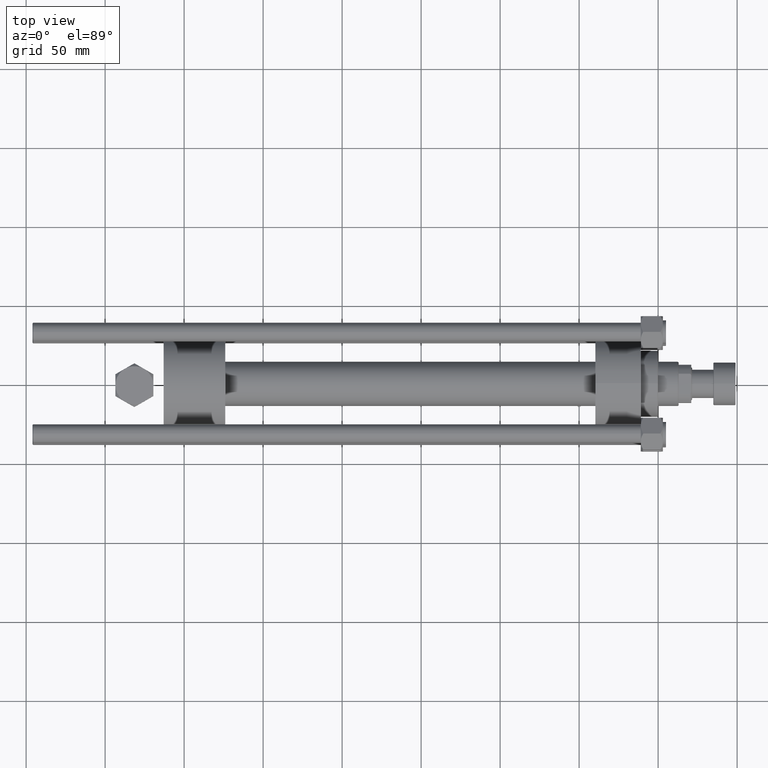
[diagram: clean part render]
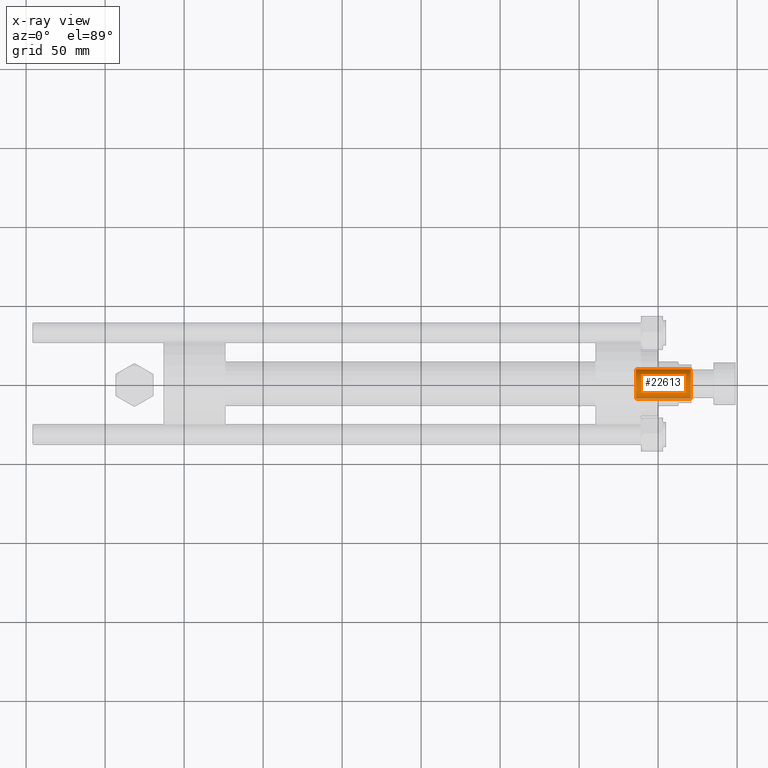
[diagram: x-ray — body ghosted, one internal face saturated and labeled with its STEP entity id]
A machine part, top view, then the same camera in x-ray: the body is ghosted and one INTERNAL B-rep face — a face not visible from any outside direction — is saturated and labeled: STEP entity #22613.
In plain terms, the highlighted cylindrical surface (edge-blend (fillet) strip) has radius 9.25 mm, axis along (1, 0, -0).
Its self-contained STEP definition (entity closure, byte-faithful):
#3414 = EDGE_CURVE ( 'NONE', #21355, #45752, #20786, .T. ) ;
#4041 = VERTEX_POINT ( 'NONE', #49161 ) ;
#4370 = VERTEX_POINT ( 'NONE', #9604 ) ;
#5587 = CIRCLE ( 'NONE', #35144, 9.249999999999992895 ) ;
#6817 = LINE ( 'NONE', #22936, #51884 ) ;
#8911 = CARTESIAN_POINT ( 'NONE',  ( 9.249999999999994671, 0.000000000000000000, 333.6999999999999318 ) ) ;
#8985 = AXIS2_PLACEMENT_3D ( 'NONE', #9359, #25995, #9103 ) ;
#9103 = DIRECTION ( 'NONE',  ( 1.000000000000000000, 0.000000000000000000, 0.000000000000000000 ) ) ;
#9359 = CARTESIAN_POINT ( 'NONE',  ( 0.000000000000000000, 0.000000000000000000, 333.6999999999999318 ) ) ;
#9604 = CARTESIAN_POINT ( 'NONE',  ( 9.249999999999992895, 0.000000000000000000, 298.9999999999999432 ) ) ;
#12798 = EDGE_CURVE ( 'NONE', #4041, #21355, #6817, .T. ) ;
#14319 = DIRECTION ( 'NONE',  ( -0.000000000000000000, -0.000000000000000000, 1.000000000000000000 ) ) ;
#14605 = EDGE_LOOP ( 'NONE', ( #39289, #42350, #18716, #27357 ) ) ;
#15743 = DIRECTION ( 'NONE',  ( -0.000000000000000000, -0.000000000000000000, 1.000000000000000000 ) ) ;
#17603 = CARTESIAN_POINT ( 'NONE',  ( -9.249999999999994671, 1.132798289211300909E-15, 333.6999999999999318 ) ) ;
#18716 = ORIENTED_EDGE ( 'NONE', *, *, #3414, .T. ) ;
#20786 = CIRCLE ( 'NONE', #8985, 9.249999999999994671 ) ;
#21355 = VERTEX_POINT ( 'NONE', #17603 ) ;
#21986 = DIRECTION ( 'NONE',  ( 1.000000000000000000, 0.000000000000000000, 0.000000000000000000 ) ) ;
#22241 = FACE_OUTER_BOUND ( 'NONE', #14605, .T. ) ;
#22613 = ADVANCED_FACE ( 'NONE', ( #22241 ), #50300, .F. ) ;
#22936 = CARTESIAN_POINT ( 'NONE',  ( -9.249999999999994671, 1.132798289211300909E-15, 333.9999999999999432 ) ) ;
#25995 = DIRECTION ( 'NONE',  ( 0.000000000000000000, 0.000000000000000000, 1.000000000000000000 ) ) ;
#27357 = ORIENTED_EDGE ( 'NONE', *, *, #34883, .F. ) ;
#28412 = CARTESIAN_POINT ( 'NONE',  ( 0.000000000000000000, 0.000000000000000000, 298.9999999999999432 ) ) ;
#30483 = CARTESIAN_POINT ( 'NONE',  ( 9.249999999999994671, 0.000000000000000000, 333.9999999999999432 ) ) ;
#34883 = EDGE_CURVE ( 'NONE', #4370, #45752, #39224, .T. ) ;
#35144 = AXIS2_PLACEMENT_3D ( 'NONE', #28412, #15743, #40330 ) ;
#37392 = VECTOR ( 'NONE', #38160, 1000.000000000000000 ) ;
#38160 = DIRECTION ( 'NONE',  ( -0.000000000000000000, -0.000000000000000000, 1.000000000000000000 ) ) ;
#39224 = LINE ( 'NONE', #30483, #37392 ) ;
#39289 = ORIENTED_EDGE ( 'NONE', *, *, #45822, .F. ) ;
#40330 = DIRECTION ( 'NONE',  ( 1.000000000000000000, 0.000000000000000000, 0.000000000000000000 ) ) ;
#42350 = ORIENTED_EDGE ( 'NONE', *, *, #12798, .T. ) ;
#45752 = VERTEX_POINT ( 'NONE', #8911 ) ;
#45784 = CARTESIAN_POINT ( 'NONE',  ( 0.000000000000000000, 0.000000000000000000, 333.9999999999999432 ) ) ;
#45822 = EDGE_CURVE ( 'NONE', #4041, #4370, #5587, .T. ) ;
#48255 = DIRECTION ( 'NONE',  ( -0.000000000000000000, -0.000000000000000000, 1.000000000000000000 ) ) ;
#49161 = CARTESIAN_POINT ( 'NONE',  ( -9.249999999999992895, 1.132798289211300712E-15, 298.9999999999999432 ) ) ;
#49567 = AXIS2_PLACEMENT_3D ( 'NONE', #45784, #14319, #21986 ) ;
#50300 = CYLINDRICAL_SURFACE ( 'NONE', #49567, 9.249999999999994671 ) ;
#51884 = VECTOR ( 'NONE', #48255, 1000.000000000000000 ) ;